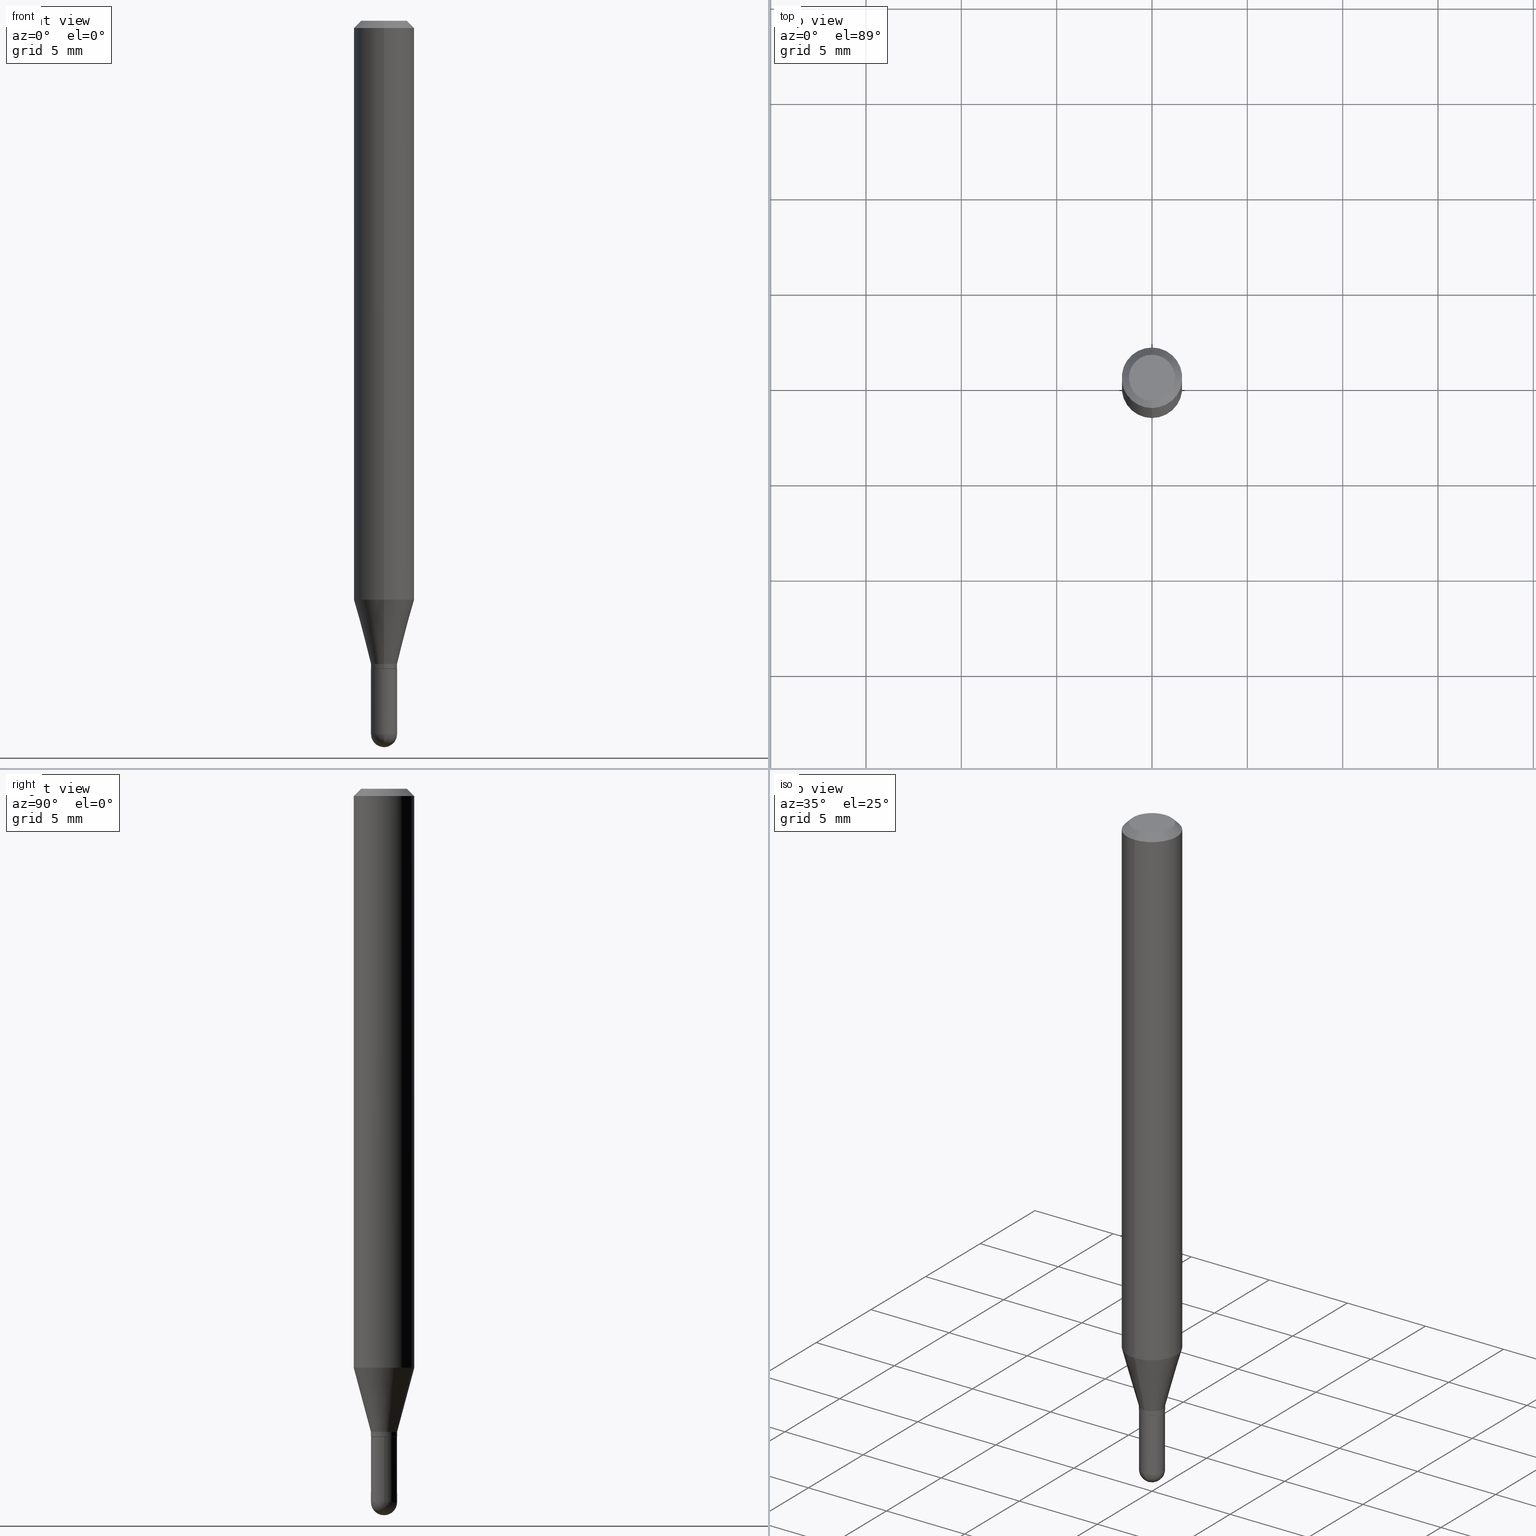
[diagram: canonical four-view strip — front | top / right | iso, engineering-drawing reading convention]
A machine part, canonical four-view strip (front | top / right | iso — engineering-drawing reading convention). The complete STEP part file that produces these views, byte-faithful:
ISO-10303-21;
HEADER;
FILE_DESCRIPTION (( 'STEP AP203' ),
    '1' );
FILE_NAME ('02619.STEP',
    '2024-03-07T20:49:20',
    ( '' ),
    ( '' ),
    'SwSTEP 2.0',
    'SolidWorks 2023',
    '' );
FILE_SCHEMA (( 'CONFIG_CONTROL_DESIGN' ));
ENDSEC;

DATA;
#1 = LINE ( 'NONE', #83, #41 ) ;
#2 = DIRECTION ( 'NONE',  ( -2.445468806185136597E-29, 3.491481338843145583E-15, 1.000000000000000000 ) ) ;
#3 = ORIENTED_EDGE ( 'NONE', *, *, #417, .F. ) ;
#4 = FACE_OUTER_BOUND ( 'NONE', #104, .T. ) ;
#5 = CARTESIAN_POINT ( 'NONE',  ( -1.885399922975286470E-16, -0.02699999999999992337, 9.426962307685878484E-17 ) ) ;
#6 = ADVANCED_FACE ( 'NONE', ( #66 ), #386, .T. ) ;
#7 = ADVANCED_FACE ( 'NONE', ( #107 ), #208, .T. ) ;
#8 = CIRCLE ( 'NONE', #170, 0.02700000000000014888 ) ;
#9 = LOCAL_TIME ( 15, 49, 20.00000000000000000, #274 ) ;
#10 = ORIENTED_EDGE ( 'NONE', *, *, #256, .F. ) ;
#11 = AXIS2_PLACEMENT_3D ( 'NONE', #388, #61, #228 ) ;
#12 = LOCAL_TIME ( 15, 49, 20.00000000000000000, #227 ) ;
#13 = ORIENTED_EDGE ( 'NONE', *, *, #330, .T. ) ;
#14 = ORIENTED_EDGE ( 'NONE', *, *, #224, .F. ) ;
#15 = ORIENTED_EDGE ( 'NONE', *, *, #380, .F. ) ;
#16 = ADVANCED_FACE ( 'NONE', ( #100 ), #20, .F. ) ;
#17 = CARTESIAN_POINT ( 'NONE',  ( 3.668217682317756627E-31, -5.237201282047839965E-17, -0.01500000000000032904 ) ) ;
#18 = CONICAL_SURFACE ( 'NONE', #446, 0.02699999999999992337, 0.2617993877991510732 ) ;
#19 = DIRECTION ( 'NONE',  ( -2.445478454878450853E-29, 3.491467521365150190E-15, 1.000000000000000000 ) ) ;
#20 = PLANE ( 'NONE',  #99 ) ;
#21 = CALENDAR_DATE ( 2024, 7, 3 ) ;
#22 = DIRECTION ( 'NONE',  ( -6.982962677686266711E-15, -1.000000000000000000, 3.491467521365150584E-15 ) ) ;
#23 = ADVANCED_FACE ( 'NONE', ( #497 ), #411, .T. ) ;
#24 = APPROVAL_ROLE ( '' ) ;
#25 = CARTESIAN_POINT ( 'NONE',  ( 0.000000000000000000, 0.000000000000000000, 0.000000000000000000 ) ) ;
#26 = ORIENTED_EDGE ( 'NONE', *, *, #464, .F. ) ;
#27 = AXIS2_PLACEMENT_3D ( 'NONE', #352, #106, #65 ) ;
#28 = DATE_TIME_ROLE ( 'creation_date' ) ;
#29 = CIRCLE ( 'NONE', #70, 0.02699999999999992337 ) ;
#30 = VECTOR ( 'NONE', #440, 39.37007874015748143 ) ;
#31 = FACE_OUTER_BOUND ( 'NONE', #161, .T. ) ;
#32 = DIRECTION ( 'NONE',  ( -6.982962677686265922E-15, -1.000000000000000000, 0.000000000000000000 ) ) ;
#33 = DIRECTION ( 'NONE',  ( -6.982962677686265922E-15, -1.000000000000000000, 3.491467521365149795E-15 ) ) ;
#34 = DIRECTION ( 'NONE',  ( 1.000000000000000000, -7.105427357601001070E-15, 4.926315508542082329E-29 ) ) ;
#35 = DATE_TIME_ROLE ( 'classification_date' ) ;
#36 = EDGE_CURVE ( 'NONE', #370, #455, #45, .T. ) ;
#37 = DIRECTION ( 'NONE',  ( -2.445478454878450853E-29, 3.491467521365150190E-15, 1.000000000000000000 ) ) ;
#38 = ORIENTED_EDGE ( 'NONE', *, *, #78, .T. ) ;
#39 = AXIS2_PLACEMENT_3D ( 'NONE', #25, #19, #234 ) ;
#40 = PLANE ( 'NONE',  #127 ) ;
#41 = VECTOR ( 'NONE', #480, 39.37007874015748143 ) ;
#42 = DIRECTION ( 'NONE',  ( 1.000000000000000000, -6.982962677686265922E-15, 4.883557194083112901E-29 ) ) ;
#43 = DIRECTION ( 'NONE',  ( -1.807323732225335661E-15, -0.2588190451025189631, 0.9659258262890687563 ) ) ;
#44 =( LENGTH_UNIT ( ) NAMED_UNIT ( * ) SI_UNIT ( $, .METRE. ) );
#45 = CIRCLE ( 'NONE', #101, 0.02700000000000014888 ) ;
#46 = APPLICATION_CONTEXT ( 'configuration controlled 3d designs of mechanical parts and assemblies' ) ;
#47 = PRODUCT_DEFINITION_FORMATION_WITH_SPECIFIED_SOURCE ( 'ANY', '', #308, .NOT_KNOWN. ) ;
#48 = ORIENTED_EDGE ( 'NONE', *, *, #206, .F. ) ;
#49 = DIRECTION ( 'NONE',  ( -6.982962677686265922E-15, -1.000000000000000000, 3.483106191921935554E-15 ) ) ;
#50 = VERTEX_POINT ( 'NONE', #63 ) ;
#51 = ORIENTED_EDGE ( 'NONE', *, *, #69, .T. ) ;
#52 =( NAMED_UNIT ( * ) SI_UNIT ( $, .STERADIAN. ) SOLID_ANGLE_UNIT ( ) );
#53 = EDGE_LOOP ( 'NONE', ( #512, #167, #204, #339 ) ) ;
#54 = PERSON ( 'UNSPECIFIED', 'UNSPECIFIED', 'UNSPECIFIED', ('UNSPECIFIED'), ('UNSPECIFIED'), ('UNSPECIFIED') ) ;
#55 = ADVANCED_BREP_SHAPE_REPRESENTATION ( '02619', ( #461, #482, #86 ), #241 ) ;
#56 = LINE ( 'NONE', #172, #303 ) ;
#57 = DIRECTION ( 'NONE',  ( -6.982962677686265922E-15, -1.000000000000000000, 0.000000000000000000 ) ) ;
#58 = CONICAL_SURFACE ( 'NONE', #355, 0.06250000000000000000, 0.7853981633974483900 ) ;
#59 = AXIS2_PLACEMENT_3D ( 'NONE', #431, #379, #117 ) ;
#60 = PERSON_AND_ORGANIZATION ( #54, #201 ) ;
#61 = DIRECTION ( 'NONE',  ( -2.445468806185136597E-29, 3.491481338843145583E-15, 1.000000000000000000 ) ) ;
#62 = EDGE_CURVE ( 'NONE', #87, #444, #29, .T. ) ;
#63 = CARTESIAN_POINT ( 'NONE',  ( -0.02699999999999999969, -4.715430483088814160E-15, -1.338000000000000078 ) ) ;
#64 = CALENDAR_DATE ( 2024, 7, 3 ) ;
#65 = DIRECTION ( 'NONE',  ( 1.000000000000000000, -6.982962677686267499E-15, 4.876176775795935232E-29 ) ) ;
#66 = FACE_OUTER_BOUND ( 'NONE', #414, .T. ) ;
#67 = DIRECTION ( 'NONE',  ( 1.839019923739605837E-15, 0.2588190451025257355, 0.9659258262890669799 ) ) ;
#68 = CARTESIAN_POINT ( 'NONE',  ( 3.316907271900976096E-16, 0.04749999999999999362, -3.299185092860269096E-16 ) ) ;
#69 = EDGE_CURVE ( 'NONE', #369, #186, #249, .T. ) ;
#70 = AXIS2_PLACEMENT_3D ( 'NONE', #273, #349, #505 ) ;
#71 = CYLINDRICAL_SURFACE ( 'NONE', #373, 0.06250000000000000000 ) ;
#72 = DIRECTION ( 'NONE',  ( -2.445468806185136597E-29, 3.491481338843145583E-15, 1.000000000000000000 ) ) ;
#73 = CARTESIAN_POINT ( 'NONE',  ( 8.024778957055871587E-45, -1.145716701727707172E-30, -3.281476040423644782E-16 ) ) ;
#74 = DIRECTION ( 'NONE',  ( -6.982962677686265922E-15, -1.000000000000000000, 0.000000000000000000 ) ) ;
#75 = DIRECTION ( 'NONE',  ( -6.982962677686265922E-15, -1.000000000000000000, 0.000000000000000000 ) ) ;
#76 = AXIS2_PLACEMENT_3D ( 'NONE', #140, #42, #74 ) ;
#77 = CARTESIAN_POINT ( 'NONE',  ( 0.02700000000000000316, -5.095817014041570866E-15, -1.473000000000000309 ) ) ;
#78 = EDGE_CURVE ( 'NONE', #186, #410, #56, .T. ) ;
#79 = CIRCLE ( 'NONE', #217, 0.06250000000000000000 ) ;
#80 = DIRECTION ( 'NONE',  ( 7.105427357601001070E-15, 1.000000000000000000, 0.000000000000000000 ) ) ;
#81 = DIRECTION ( 'NONE',  ( -6.982962677686265922E-15, -1.000000000000000000, 4.370956789862821150E-15 ) ) ;
#82 = CARTESIAN_POINT ( 'NONE',  ( -0.02700000000000000316, -4.715430483088814160E-15, -1.473000000000000309 ) ) ;
#83 = CARTESIAN_POINT ( 'NONE',  ( 4.364351673553919652E-16, 0.06249999999999995143, -0.01500000000000054588 ) ) ;
#84 = LINE ( 'NONE', #279, #171 ) ;
#85 = CIRCLE ( 'NONE', #230, 0.02699999999999992337 ) ;
#86 = AXIS2_PLACEMENT_3D ( 'NONE', #447, #94, #169 ) ;
#87 = VERTEX_POINT ( 'NONE', #96 ) ;
#88 = EDGE_CURVE ( 'NONE', #375, #410, #85, .T. ) ;
#89 = ORIENTED_EDGE ( 'NONE', *, *, #88, .T. ) ;
#90 = VERTEX_POINT ( 'NONE', #221 ) ;
#91 = CIRCLE ( 'NONE', #378, 0.04749999999999999362 ) ;
#92 = ADVANCED_FACE ( 'NONE', ( #383 ), #341, .T. ) ;
#93 = EDGE_LOOP ( 'NONE', ( #331, #89, #162, #131 ) ) ;
#94 = DIRECTION ( 'NONE',  ( 0.000000000000000000, 0.000000000000000000, 1.000000000000000000 ) ) ;
#95 = ORIENTED_EDGE ( 'NONE', *, *, #62, .T. ) ;
#96 = CARTESIAN_POINT ( 'NONE',  ( -1.885399922974961558E-16, -0.02700000000000455855, -1.328000000000000513 ) ) ;
#97 = APPROVAL_DATE_TIME ( #430, #295 ) ;
#98 = FACE_OUTER_BOUND ( 'NONE', #207, .T. ) ;
#99 = AXIS2_PLACEMENT_3D ( 'NONE', #68, #231, #312 ) ;
#100 = FACE_OUTER_BOUND ( 'NONE', #214, .T. ) ;
#101 = AXIS2_PLACEMENT_3D ( 'NONE', #147, #264, #32 ) ;
#102 = CALENDAR_DATE ( 2024, 7, 3 ) ;
#103 = CARTESIAN_POINT ( 'NONE',  ( 3.602175551510707068E-29, -5.142952012115954617E-15, -1.473000000000000309 ) ) ;
#104 = EDGE_LOOP ( 'NONE', ( #305, #401 ) ) ;
#105 = PERSON_AND_ORGANIZATION ( #54, #201 ) ;
#106 = DIRECTION ( 'NONE',  ( -2.445468806185136597E-29, 3.491481338843145583E-15, 1.000000000000000000 ) ) ;
#107 = FACE_OUTER_BOUND ( 'NONE', #328, .T. ) ;
#108 = DIMENSIONAL_EXPONENTS ( 1.000000000000000000, 0.000000000000000000, 0.000000000000000000, 0.000000000000000000, 0.000000000000000000, 0.000000000000000000, 0.000000000000000000 ) ;
#109 = APPROVAL_ROLE ( '' ) ;
#110 = CARTESIAN_POINT ( 'NONE',  ( -0.02700000000000000316, 1.918465386552270727E-16, -1.328112474368824641E-30 ) ) ;
#111 = PRODUCT_RELATED_PRODUCT_CATEGORY ( 'detail', '', ( #308 ) ) ;
#112 = DIRECTION ( 'NONE',  ( -4.937700262164674260E-15, -0.7071067811865632269, 0.7071067811865319186 ) ) ;
#113 = VECTOR ( 'NONE', #280, 39.37007874015748143 ) ;
#114 = COORDINATED_UNIVERSAL_TIME_OFFSET ( 5, 0, .BEHIND. ) ;
#115 = FACE_OUTER_BOUND ( 'NONE', #53, .T. ) ;
#116 = CARTESIAN_POINT ( 'NONE',  ( 3.272050172627366946E-29, -4.671583543586570530E-15, -1.338000000000000078 ) ) ;
#117 = DIRECTION ( 'NONE',  ( 1.000000000000000000, -6.982962677686259611E-15, 0.000000000000000000 ) ) ;
#118 = DIRECTION ( 'NONE',  ( -6.982962677686265922E-15, -1.000000000000000000, 0.000000000000000000 ) ) ;
#119 = ADVANCED_FACE ( 'NONE', ( #178 ), #18, .T. ) ;
#120 = CARTESIAN_POINT ( 'NONE',  ( 1.882938249764592324E-16, 0.02649999999999532938, -1.338000000000000078 ) ) ;
#121 = DIRECTION ( 'NONE',  ( -2.445468806185136597E-29, 3.491481338843145583E-15, 1.000000000000000000 ) ) ;
#122 = LINE ( 'NONE', #284, #419 ) ;
#123 = EDGE_CURVE ( 'NONE', #444, #87, #181, .T. ) ;
#124 = CARTESIAN_POINT ( 'NONE',  ( -4.364351673553912750E-16, -0.06250000000000005551, -0.01500000000000011047 ) ) ;
#125 = EDGE_CURVE ( 'NONE', #486, #90, #164, .T. ) ;
#126 = AXIS2_PLACEMENT_3D ( 'NONE', #17, #389, #218 ) ;
#127 = AXIS2_PLACEMENT_3D ( 'NONE', #197, #360, #156 ) ;
#128 = ORIENTED_EDGE ( 'NONE', *, *, #88, .F. ) ;
#129 = PRODUCT_DEFINITION ( 'UNKNOWN', '', #47, #301 ) ;
#130 = ORIENTED_EDGE ( 'NONE', *, *, #36, .T. ) ;
#131 = ORIENTED_EDGE ( 'NONE', *, *, #123, .F. ) ;
#132 = AXIS2_PLACEMENT_3D ( 'NONE', #103, #342, #494 ) ;
#133 = ORIENTED_EDGE ( 'NONE', *, *, #191, .F. ) ;
#134 = ORIENTED_EDGE ( 'NONE', *, *, #365, .T. ) ;
#135 = PERSON_AND_ORGANIZATION ( #54, #201 ) ;
#136 = DIRECTION ( 'NONE',  ( -6.982962677686266711E-15, -1.000000000000000000, 3.491467521365150584E-15 ) ) ;
#137 = CC_DESIGN_PERSON_AND_ORGANIZATION_ASSIGNMENT ( #105, #387, ( #47 ) ) ;
#138 = ORIENTED_EDGE ( 'NONE', *, *, #473, .T. ) ;
#139 = CARTESIAN_POINT ( 'NONE',  ( 3.272050172627366946E-29, -4.671583543586570530E-15, -1.338000000000000078 ) ) ;
#140 = CARTESIAN_POINT ( 'NONE',  ( 3.599866602529921766E-29, -5.146258558473651564E-15, -1.473000000000000087 ) ) ;
#141 = CIRCLE ( 'NONE', #477, 0.02699999999999992337 ) ;
#142 = DIRECTION ( 'NONE',  ( -2.445478454878450853E-29, 3.491467521365150190E-15, 1.000000000000000000 ) ) ;
#143 = EDGE_LOOP ( 'NONE', ( #452, #13, #296, #406, #268 ) ) ;
#144 = APPROVAL_DATE_TIME ( #391, #160 ) ;
#145 = APPROVAL ( #346, 'UNSPECIFIED' ) ;
#146 = CARTESIAN_POINT ( 'NONE',  ( 0.02699999999999999969, -4.860142023669657629E-15, -1.338000000000000078 ) ) ;
#147 = CARTESIAN_POINT ( 'NONE',  ( 3.599866602529921766E-29, -5.146258558473651564E-15, -1.473000000000000087 ) ) ;
#148 = MECHANICAL_CONTEXT ( 'NONE', #213, 'mechanical' ) ;
#149 = CARTESIAN_POINT ( 'NONE',  ( 0.000000000000000000, 0.000000000000000000, 0.000000000000000000 ) ) ;
#150 = DIRECTION ( 'NONE',  ( -2.445478454878450853E-29, 3.491467521365150190E-15, 1.000000000000000000 ) ) ;
#151 = APPROVAL_PERSON_ORGANIZATION ( #135, #160, #24 ) ;
#152 = EDGE_LOOP ( 'NONE', ( #211, #194, #190, #15 ) ) ;
#153 = DIRECTION ( 'NONE',  ( -2.445478454878450853E-29, 3.491467521365150190E-15, 1.000000000000000000 ) ) ;
#154 = EDGE_CURVE ( 'NONE', #87, #486, #318, .T. ) ;
#155 = FACE_OUTER_BOUND ( 'NONE', #412, .T. ) ;
#156 = DIRECTION ( 'NONE',  ( -1.000000000000000000, 6.982962677686265922E-15, -4.876176775795935793E-29 ) ) ;
#157 = FACE_OUTER_BOUND ( 'NONE', #205, .T. ) ;
#158 = VECTOR ( 'NONE', #199, 39.37007874015748143 ) ;
#159 = CARTESIAN_POINT ( 'NONE',  ( -3.773273898774340269E-16, -0.04749999999999999362, -1.623028967775198570E-16 ) ) ;
#160 = APPROVAL ( #506, 'UNSPECIFIED' ) ;
#161 = EDGE_LOOP ( 'NONE', ( #48, #130, #289, #434 ) ) ;
#162 = ORIENTED_EDGE ( 'NONE', *, *, #224, .T. ) ;
#163 = ORIENTED_EDGE ( 'NONE', *, *, #483, .T. ) ;
#164 = CIRCLE ( 'NONE', #471, 0.06250000000000000000 ) ;
#165 = ADVANCED_FACE ( 'NONE', ( #239 ), #196, .T. ) ;
#166 = ORIENTED_EDGE ( 'NONE', *, *, #154, .F. ) ;
#167 = ORIENTED_EDGE ( 'NONE', *, *, #123, .T. ) ;
#168 = ORIENTED_EDGE ( 'NONE', *, *, #510, .T. ) ;
#169 = DIRECTION ( 'NONE',  ( 1.000000000000000000, 0.000000000000000000, 0.000000000000000000 ) ) ;
#170 = AXIS2_PLACEMENT_3D ( 'NONE', #361, #34, #80 ) ;
#171 = VECTOR ( 'NONE', #329, 39.37007874015748143 ) ;
#172 = CARTESIAN_POINT ( 'NONE',  ( -1.850485109586532966E-16, -0.02650000000000466913, -1.338000000000000078 ) ) ;
#173 = EDGE_CURVE ( 'NONE', #423, #50, #332, .T. ) ;
#174 = CARTESIAN_POINT ( 'NONE',  ( 1.918465386552589476E-16, 0.02699999999999528819, -1.328000000000000513 ) ) ;
#175 = DIRECTION ( 'NONE',  ( -2.445478454878450853E-29, 3.491467521365150190E-15, 1.000000000000000000 ) ) ;
#176 = COORDINATED_UNIVERSAL_TIME_OFFSET ( 5, 0, .BEHIND. ) ;
#177 = DIRECTION ( 'NONE',  ( 6.982962677686265922E-15, 1.000000000000000000, -3.483106191921935554E-15 ) ) ;
#178 = FACE_OUTER_BOUND ( 'NONE', #445, .T. ) ;
#179 = DIRECTION ( 'NONE',  ( 1.000000000000000000, -6.982962677686259611E-15, 0.000000000000000000 ) ) ;
#180 = ORIENTED_EDGE ( 'NONE', *, *, #125, .F. ) ;
#181 = CIRCLE ( 'NONE', #399, 0.02699999999999992337 ) ;
#182 = ADVANCED_FACE ( 'NONE', ( #155 ), #432, .F. ) ;
#183 = ADVANCED_FACE ( 'NONE', ( #157 ), #395, .T. ) ;
#184 = CALENDAR_DATE ( 2024, 7, 3 ) ;
#185 = CARTESIAN_POINT ( 'NONE',  ( 0.02700000000000000316, -1.885399922975292387E-16, 1.316567729464902685E-30 ) ) ;
#186 = VERTEX_POINT ( 'NONE', #356 ) ;
#187 = DIRECTION ( 'NONE',  ( -2.445478454878450853E-29, 3.491467521365150190E-15, 1.000000000000000000 ) ) ;
#188 = DIRECTION ( 'NONE',  ( -6.982962677686265922E-15, -1.000000000000000000, 4.370956789862821150E-15 ) ) ;
#189 = APPROVAL_STATUS ( 'not_yet_approved' ) ;
#190 = ORIENTED_EDGE ( 'NONE', *, *, #266, .F. ) ;
#191 = EDGE_CURVE ( 'NONE', #369, #375, #323, .T. ) ;
#192 = DIRECTION ( 'NONE',  ( -6.982962677686265922E-15, -1.000000000000000000, 0.000000000000000000 ) ) ;
#193 = AXIS2_PLACEMENT_3D ( 'NONE', #429, #72, #511 ) ;
#194 = ORIENTED_EDGE ( 'NONE', *, *, #206, .T. ) ;
#195 = LOCAL_TIME ( 15, 49, 20.00000000000000000, #176 ) ;
#196 = CYLINDRICAL_SURFACE ( 'NONE', #262, 0.06250000000000000000 ) ;
#197 = CARTESIAN_POINT ( 'NONE',  ( 1.885399922975619024E-16, 0.02699999999999532982, -1.338000000000000078 ) ) ;
#198 = CARTESIAN_POINT ( 'NONE',  ( 3.272037262675712888E-29, -4.671602031372128143E-15, -1.338000000000000078 ) ) ;
#199 = DIRECTION ( 'NONE',  ( -2.445478454878450853E-29, 3.491467521365150190E-15, 1.000000000000000000 ) ) ;
#200 = AXIS2_PLACEMENT_3D ( 'NONE', #385, #496, #179 ) ;
#201 = ORGANIZATION ( 'UNSPECIFIED', 'UNSPECIFIED', '' ) ;
#202 = DIRECTION ( 'NONE',  ( -2.445478454878450853E-29, 3.491467521365150190E-15, 1.000000000000000000 ) ) ;
#203 = ORIENTED_EDGE ( 'NONE', *, *, #245, .T. ) ;
#204 = ORIENTED_EDGE ( 'NONE', *, *, #154, .T. ) ;
#205 = EDGE_LOOP ( 'NONE', ( #225, #215, #374, #134, #354 ) ) ;
#206 = EDGE_CURVE ( 'NONE', #370, #291, #8, .T. ) ;
#207 = EDGE_LOOP ( 'NONE', ( #26, #396, #448, #168 ) ) ;
#208 = CONICAL_SURFACE ( 'NONE', #281, 0.02649999999999999925, 0.7853981633974739252 ) ;
#209 = CIRCLE ( 'NONE', #377, 0.02649999999999999925 ) ;
#210 = APPROVAL_PERSON_ORGANIZATION ( #453, #295, #109 ) ;
#211 = ORIENTED_EDGE ( 'NONE', *, *, #36, .F. ) ;
#212 = LENGTH_MEASURE_WITH_UNIT ( LENGTH_MEASURE( 0.02539999999999999897 ), #44 );
#213 = APPLICATION_CONTEXT ( 'configuration controlled 3d designs of mechanical parts and assemblies' ) ;
#214 = EDGE_LOOP ( 'NONE', ( #408, #450 ) ) ;
#215 = ORIENTED_EDGE ( 'NONE', *, *, #443, .T. ) ;
#216 = VECTOR ( 'NONE', #267, 39.37007874015748143 ) ;
#217 = AXIS2_PLACEMENT_3D ( 'NONE', #407, #242, #81 ) ;
#218 = DIRECTION ( 'NONE',  ( 6.982962677686265922E-15, 1.000000000000000000, -3.483106191921935554E-15 ) ) ;
#219 = PERSON_AND_ORGANIZATION ( #54, #201 ) ;
#220 = CARTESIAN_POINT ( 'NONE',  ( 3.668217682317756627E-31, -5.237201282047839965E-17, -0.01500000000000032904 ) ) ;
#221 = CARTESIAN_POINT ( 'NONE',  ( 4.440892098500916068E-16, 0.06249999999999580891, -1.195512196331306232 ) ) ;
#222 = APPROVAL_ROLE ( '' ) ;
#223 = CARTESIAN_POINT ( 'NONE',  ( 1.918465386552585285E-16, 0.02699999999999516329, -1.337500000000000133 ) ) ;
#224 = EDGE_CURVE ( 'NONE', #410, #87, #439, .T. ) ;
#225 = ORIENTED_EDGE ( 'NONE', *, *, #330, .F. ) ;
#226 = PRODUCT_DEFINITION_SHAPE ( 'NONE', 'NONE',  #129 ) ;
#227 = COORDINATED_UNIVERSAL_TIME_OFFSET ( 5, 0, .BEHIND. ) ;
#228 = DIRECTION ( 'NONE',  ( 1.000000000000000000, -6.982962677686259611E-15, 0.000000000000000000 ) ) ;
#229 = CLOSED_SHELL ( 'NONE', ( #397, #92, #449, #415, #183 ) ) ;
#230 = AXIS2_PLACEMENT_3D ( 'NONE', #258, #416, #57 ) ;
#231 = DIRECTION ( 'NONE',  ( 2.445478454878450573E-29, -3.491467521365150190E-15, -1.000000000000000000 ) ) ;
#232 = AXIS2_PLACEMENT_3D ( 'NONE', #357, #327, #364 ) ;
#233 = PERSON_AND_ORGANIZATION ( #54, #201 ) ;
#234 = DIRECTION ( 'NONE',  ( -6.982962677686265922E-15, -1.000000000000000000, 3.491467521365150190E-15 ) ) ;
#235 = CARTESIAN_POINT ( 'NONE',  ( 3.247595388078583312E-29, -4.636668868372920613E-15, -1.328000000000000513 ) ) ;
#236 = PERSON_AND_ORGANIZATION_ROLE ( 'creator' ) ;
#237 = DIRECTION ( 'NONE',  ( -2.445478454878450573E-29, 3.491467521365150190E-15, 1.000000000000000000 ) ) ;
#238 = CC_DESIGN_DATE_AND_TIME_ASSIGNMENT ( #457, #28, ( #129 ) ) ;
#239 = FACE_OUTER_BOUND ( 'NONE', #462, .T. ) ;
#240 = VECTOR ( 'NONE', #277, 39.37007874015748143 ) ;
#241 =( GEOMETRIC_REPRESENTATION_CONTEXT ( 3 ) GLOBAL_UNCERTAINTY_ASSIGNED_CONTEXT ( ( #259 ) ) GLOBAL_UNIT_ASSIGNED_CONTEXT ( ( #333, #487, #52 ) ) REPRESENTATION_CONTEXT ( 'NONE', 'WORKASPACE' ) );
#242 = DIRECTION ( 'NONE',  ( -2.445478454878450853E-29, 3.491467521365150190E-15, 1.000000000000000000 ) ) ;
#243 = CARTESIAN_POINT ( 'NONE',  ( 0.000000000000000000, 0.000000000000000000, 0.000000000000000000 ) ) ;
#244 = LINE ( 'NONE', #250, #158 ) ;
#245 = EDGE_CURVE ( 'NONE', #410, #375, #141, .T. ) ;
#246 = CARTESIAN_POINT ( 'NONE',  ( -4.364351673553626295E-16, -0.06250000000000420497, -1.195512196331305566 ) ) ;
#247 = ORIENTED_EDGE ( 'NONE', *, *, #78, .F. ) ;
#248 = VERTEX_POINT ( 'NONE', #478 ) ;
#249 = CIRCLE ( 'NONE', #499, 0.02649999999999999925 ) ;
#250 = CARTESIAN_POINT ( 'NONE',  ( 1.918465386552264810E-16, 0.02699999999999992337, -9.426962307685878484E-17 ) ) ;
#251 = ORIENTED_EDGE ( 'NONE', *, *, #125, .T. ) ;
#252 = VERTEX_POINT ( 'NONE', #82 ) ;
#253 = EDGE_CURVE ( 'NONE', #50, #423, #435, .T. ) ;
#254 = ORIENTED_EDGE ( 'NONE', *, *, #473, .F. ) ;
#255 = VECTOR ( 'NONE', #460, 39.37007874015748143 ) ;
#256 = EDGE_CURVE ( 'NONE', #186, #369, #209, .T. ) ;
#257 = ADVANCED_FACE ( 'NONE', ( #436 ), #454, .T. ) ;
#258 = CARTESIAN_POINT ( 'NONE',  ( 3.270827433399928633E-29, -4.669837809825889493E-15, -1.337500000000000133 ) ) ;
#259 = UNCERTAINTY_MEASURE_WITH_UNIT (LENGTH_MEASURE( 1.000000000000000082E-05 ), #333, 'distance_accuracy_value', 'NONE');
#260 = DATE_AND_TIME ( #184, #437 ) ;
#261 = LINE ( 'NONE', #174, #282 ) ;
#262 = AXIS2_PLACEMENT_3D ( 'NONE', #243, #320, #475 ) ;
#263 = CIRCLE ( 'NONE', #59, 0.02700000000000000316 ) ;
#264 = DIRECTION ( 'NONE',  ( -1.000000000000000000, 6.982962677686265922E-15, -4.883557194083112340E-29 ) ) ;
#265 = DATE_AND_TIME ( #102, #195 ) ;
#266 = EDGE_CURVE ( 'NONE', #492, #291, #405, .T. ) ;
#267 = DIRECTION ( 'NONE',  ( -2.445468806185136877E-29, 3.491481338843145188E-15, 1.000000000000000000 ) ) ;
#268 = ORIENTED_EDGE ( 'NONE', *, *, #266, .T. ) ;
#269 = PERSON_AND_ORGANIZATION_ROLE ( 'design_supplier' ) ;
#270 = DIRECTION ( 'NONE',  ( 1.000000000000000000, -6.982962677686265922E-15, 4.883557194083112901E-29 ) ) ;
#271 = DIRECTION ( 'NONE',  ( -2.445478454878450853E-29, 3.491467521365150190E-15, 1.000000000000000000 ) ) ;
#272 = SPHERICAL_SURFACE ( 'NONE', #418, 0.02700000000000014888 ) ;
#273 = CARTESIAN_POINT ( 'NONE',  ( 3.247595388078583312E-29, -4.636668868372920613E-15, -1.328000000000000513 ) ) ;
#274 = COORDINATED_UNIVERSAL_TIME_OFFSET ( 5, 0, .BEHIND. ) ;
#275 = CARTESIAN_POINT ( 'NONE',  ( -1.885399922974965502E-16, -0.02700000000000468345, -1.337500000000000133 ) ) ;
#276 = DIRECTION ( 'NONE',  ( -2.445478454878450853E-29, 3.491467521365150190E-15, 1.000000000000000000 ) ) ;
#277 = DIRECTION ( 'NONE',  ( 5.024295867788190974E-15, 0.7071067811865681119, 0.7071067811865270336 ) ) ;
#278 = EDGE_LOOP ( 'NONE', ( #251, #292, #335, #254 ) ) ;
#279 = CARTESIAN_POINT ( 'NONE',  ( 4.440892098500625669E-16, 0.06250000000000000000, -2.182167200853218622E-16 ) ) ;
#280 = DIRECTION ( 'NONE',  ( -2.445478454878450853E-29, 3.491467521365150190E-15, 1.000000000000000000 ) ) ;
#281 = AXIS2_PLACEMENT_3D ( 'NONE', #421, #271, #426 ) ;
#282 = VECTOR ( 'NONE', #67, 39.37007874015748143 ) ;
#283 = CC_DESIGN_SECURITY_CLASSIFICATION ( #304, ( #47 ) ) ;
#284 = CARTESIAN_POINT ( 'NONE',  ( -4.287811248607203282E-16, -0.06250000000000005551, -0.01500000000000011047 ) ) ;
#285 = CC_DESIGN_PERSON_AND_ORGANIZATION_ASSIGNMENT ( #60, #236, ( #129 ) ) ;
#286 = ADVANCED_FACE ( 'NONE', ( #115 ), #441, .T. ) ;
#287 = DIRECTION ( 'NONE',  ( 1.000000000000000000, -6.982962677686261189E-15, 0.000000000000000000 ) ) ;
#288 = DIRECTION ( 'NONE',  ( -4.851104656540964275E-15, -0.7071067811865500152, -0.7071067811865450192 ) ) ;
#289 = ORIENTED_EDGE ( 'NONE', *, *, #443, .F. ) ;
#290 = CONICAL_SURFACE ( 'NONE', #489, 0.02649999999999999925, 0.7853981633974739252 ) ;
#291 = VERTEX_POINT ( 'NONE', #424 ) ;
#292 = ORIENTED_EDGE ( 'NONE', *, *, #488, .T. ) ;
#293 = AXIS2_PLACEMENT_3D ( 'NONE', #422, #187, #307 ) ;
#294 = CC_DESIGN_APPROVAL ( #295, ( #304 ) ) ;
#295 = APPROVAL ( #189, 'UNSPECIFIED' ) ;
#296 = ORIENTED_EDGE ( 'NONE', *, *, #173, .F. ) ;
#297 = DIRECTION ( 'NONE',  ( -2.445478454878450853E-29, 3.491467521365150190E-15, 1.000000000000000000 ) ) ;
#298 = SECURITY_CLASSIFICATION_LEVEL ( 'unclassified' ) ;
#299 = CARTESIAN_POINT ( 'NONE',  ( 0.000000000000000000, 0.000000000000000000, 0.000000000000000000 ) ) ;
#300 = EDGE_CURVE ( 'NONE', #291, #252, #362, .T. ) ;
#301 = DESIGN_CONTEXT ( 'detailed design', #46, 'design' ) ;
#302 = DIRECTION ( 'NONE',  ( -6.982962677686265922E-15, -1.000000000000000000, 0.000000000000000000 ) ) ;
#303 = VECTOR ( 'NONE', #112, 39.37007874015748143 ) ;
#304 = SECURITY_CLASSIFICATION ( '', '', #298 ) ;
#305 = ORIENTED_EDGE ( 'NONE', *, *, #173, .T. ) ;
#306 = PERSON_AND_ORGANIZATION ( #54, #201 ) ;
#307 = DIRECTION ( 'NONE',  ( -6.982962677686265922E-15, -1.000000000000000000, 0.000000000000000000 ) ) ;
#308 = PRODUCT ( '02619', '02619', '', ( #148 ) ) ;
#309 = ORIENTED_EDGE ( 'NONE', *, *, #69, .F. ) ;
#310 = APPROVAL_DATE_TIME ( #260, #145 ) ;
#311 = CYLINDRICAL_SURFACE ( 'NONE', #27, 0.02700000000000000316 ) ;
#312 = DIRECTION ( 'NONE',  ( 6.982962677686265922E-15, 1.000000000000000000, -3.491467521365150190E-15 ) ) ;
#313 = PERSON_AND_ORGANIZATION ( #54, #201 ) ;
#314 = DIRECTION ( 'NONE',  ( -2.445478454878450853E-29, 3.491467521365150190E-15, 1.000000000000000000 ) ) ;
#315 = AXIS2_PLACEMENT_3D ( 'NONE', #198, #121, #287 ) ;
#316 = DIRECTION ( 'NONE',  ( -2.445478454878450853E-29, 3.491467521365150190E-15, 1.000000000000000000 ) ) ;
#317 = CC_DESIGN_APPROVAL ( #160, ( #129 ) ) ;
#318 = LINE ( 'NONE', #400, #458 ) ;
#319 = CARTESIAN_POINT ( 'NONE',  ( -4.364351673553916201E-16, -0.06250000000000000000, 2.182167200853218622E-16 ) ) ;
#320 = DIRECTION ( 'NONE',  ( -2.445478454878450853E-29, 3.491467521365150190E-15, 1.000000000000000000 ) ) ;
#321 = ORIENTED_EDGE ( 'NONE', *, *, #508, .T. ) ;
#322 = CARTESIAN_POINT ( 'NONE',  ( -1.885399922974936906E-16, -0.02700000000000522121, -1.473000000000000309 ) ) ;
#323 = LINE ( 'NONE', #120, #240 ) ;
#324 = CLOSED_SHELL ( 'NONE', ( #6, #7, #23, #427, #119, #286, #165, #409, #16, #182, #351, #257 ) ) ;
#325 = AXIS2_PLACEMENT_3D ( 'NONE', #338, #507, #136 ) ;
#326 = CIRCLE ( 'NONE', #11, 0.02700000000000000316 ) ;
#327 = DIRECTION ( 'NONE',  ( -2.445478454878450853E-29, 3.491467521365150190E-15, 1.000000000000000000 ) ) ;
#328 = EDGE_LOOP ( 'NONE', ( #345, #476, #484, #247 ) ) ;
#329 = DIRECTION ( 'NONE',  ( -2.445478454878450853E-29, 3.491467521365150190E-15, 1.000000000000000000 ) ) ;
#330 = EDGE_CURVE ( 'NONE', #252, #50, #470, .T. ) ;
#331 = ORIENTED_EDGE ( 'NONE', *, *, #508, .F. ) ;
#332 = CIRCLE ( 'NONE', #315, 0.02699999999999999969 ) ;
#333 =( CONVERSION_BASED_UNIT ( 'INCH', #212 ) LENGTH_UNIT ( ) NAMED_UNIT ( #108 ) );
#334 = ORIENTED_EDGE ( 'NONE', *, *, #464, .T. ) ;
#335 = ORIENTED_EDGE ( 'NONE', *, *, #483, .F. ) ;
#336 = AXIS2_PLACEMENT_3D ( 'NONE', #116, #237, #472 ) ;
#337 = DIRECTION ( 'NONE',  ( -6.982962677686265922E-15, -1.000000000000000000, 0.000000000000000000 ) ) ;
#338 = CARTESIAN_POINT ( 'NONE',  ( 8.024778957055871587E-45, -1.145716701727707172E-30, -3.281476040423644782E-16 ) ) ;
#339 = ORIENTED_EDGE ( 'NONE', *, *, #498, .F. ) ;
#340 = LINE ( 'NONE', #185, #255 ) ;
#341 = SPHERICAL_SURFACE ( 'NONE', #76, 0.02700000000000014888 ) ;
#342 = DIRECTION ( 'NONE',  ( -2.445468806185136597E-29, 3.491481338843145583E-15, 1.000000000000000000 ) ) ;
#343 = CIRCLE ( 'NONE', #325, 0.04749999999999999362 ) ;
#344 = CIRCLE ( 'NONE', #232, 0.06250000000000000000 ) ;
#345 = ORIENTED_EDGE ( 'NONE', *, *, #256, .T. ) ;
#346 = APPROVAL_STATUS ( 'not_yet_approved' ) ;
#347 = EDGE_CURVE ( 'NONE', #444, #90, #261, .T. ) ;
#348 = DIRECTION ( 'NONE',  ( -6.982962677686265922E-15, -1.000000000000000000, 0.000000000000000000 ) ) ;
#349 = DIRECTION ( 'NONE',  ( -2.445478454878450853E-29, 3.491467521365150190E-15, 1.000000000000000000 ) ) ;
#350 = APPLICATION_PROTOCOL_DEFINITION ( 'international standard', 'config_control_design', 1994, #46 ) ;
#351 = ADVANCED_FACE ( 'NONE', ( #501 ), #290, .T. ) ;
#352 = CARTESIAN_POINT ( 'NONE',  ( 0.000000000000000000, 0.000000000000000000, 0.000000000000000000 ) ) ;
#353 = CARTESIAN_POINT ( 'NONE',  ( 2.923599318672625307E-29, -4.174092004886671043E-15, -1.195512196331305788 ) ) ;
#354 = ORIENTED_EDGE ( 'NONE', *, *, #253, .F. ) ;
#355 = AXIS2_PLACEMENT_3D ( 'NONE', #220, #467, #177 ) ;
#356 = CARTESIAN_POINT ( 'NONE',  ( -1.850485109586532966E-16, -0.02650000000000466913, -1.338000000000000078 ) ) ;
#357 = CARTESIAN_POINT ( 'NONE',  ( 3.668217682317756627E-31, -5.237201282047839965E-17, -0.01500000000000032904 ) ) ;
#358 = DIRECTION ( 'NONE',  ( -6.982962677686265922E-15, -1.000000000000000000, 0.000000000000000000 ) ) ;
#359 = ORIENTED_EDGE ( 'NONE', *, *, #485, .F. ) ;
#360 = DIRECTION ( 'NONE',  ( 2.438088387897960049E-29, -3.491481338843145188E-15, -1.000000000000000000 ) ) ;
#361 = CARTESIAN_POINT ( 'NONE',  ( 3.599866602529921766E-29, -5.146258558473651564E-15, -1.473000000000000087 ) ) ;
#362 = CIRCLE ( 'NONE', #132, 0.02700000000000000316 ) ;
#363 = APPROVAL_PERSON_ORGANIZATION ( #306, #145, #222 ) ;
#364 = DIRECTION ( 'NONE',  ( -6.982962677686265922E-15, -1.000000000000000000, 3.483106191921935554E-15 ) ) ;
#365 = EDGE_CURVE ( 'NONE', #492, #423, #340, .T. ) ;
#366 = EDGE_LOOP ( 'NONE', ( #133, #51, #38, #128 ) ) ;
#367 = CARTESIAN_POINT ( 'NONE',  ( 3.179678742526754374E-16, 0.02699999999999528819, -1.328000000000000513 ) ) ;
#368 = ORIENTED_EDGE ( 'NONE', *, *, #510, .F. ) ;
#369 = VERTEX_POINT ( 'NONE', #420 ) ;
#370 = VERTEX_POINT ( 'NONE', #463 ) ;
#371 = EDGE_LOOP ( 'NONE', ( #3, #334, #163, #359 ) ) ;
#372 = AXIS2_PLACEMENT_3D ( 'NONE', #474, #2, #403 ) ;
#373 = AXIS2_PLACEMENT_3D ( 'NONE', #149, #314, #33 ) ;
#374 = ORIENTED_EDGE ( 'NONE', *, *, #380, .T. ) ;
#375 = VERTEX_POINT ( 'NONE', #223 ) ;
#376 = ORIENTED_EDGE ( 'NONE', *, *, #347, .T. ) ;
#377 = AXIS2_PLACEMENT_3D ( 'NONE', #433, #153, #75 ) ;
#378 = AXIS2_PLACEMENT_3D ( 'NONE', #73, #504, #22 ) ;
#379 = DIRECTION ( 'NONE',  ( -2.445468806185136597E-29, 3.491481338843145583E-15, 1.000000000000000000 ) ) ;
#380 = EDGE_CURVE ( 'NONE', #455, #492, #326, .T. ) ;
#381 = DIRECTION ( 'NONE',  ( -6.982962677686265922E-15, -1.000000000000000000, 3.491467521365150190E-15 ) ) ;
#382 = CARTESIAN_POINT ( 'NONE',  ( 3.599866602529921766E-29, -5.146258558473651564E-15, -1.473000000000000087 ) ) ;
#383 = FACE_OUTER_BOUND ( 'NONE', #152, .T. ) ;
#384 = SHAPE_DEFINITION_REPRESENTATION ( #226, #55 ) ;
#385 = CARTESIAN_POINT ( 'NONE',  ( 3.602175551510707068E-29, -5.142952012115954617E-15, -1.473000000000000309 ) ) ;
#386 = CYLINDRICAL_SURFACE ( 'NONE', #456, 0.02699999999999992337 ) ;
#387 = PERSON_AND_ORGANIZATION_ROLE ( 'creator' ) ;
#388 = CARTESIAN_POINT ( 'NONE',  ( 3.602175551510707068E-29, -5.142952012115954617E-15, -1.473000000000000309 ) ) ;
#389 = DIRECTION ( 'NONE',  ( 2.445478454878450853E-29, -3.491467521365150190E-15, -1.000000000000000000 ) ) ;
#390 = CC_DESIGN_DATE_AND_TIME_ASSIGNMENT ( #265, #35, ( #304 ) ) ;
#391 = DATE_AND_TIME ( #394, #12 ) ;
#392 = FACE_OUTER_BOUND ( 'NONE', #143, .T. ) ;
#393 = CARTESIAN_POINT ( 'NONE',  ( 3.247595388078583312E-29, -4.636668868372920613E-15, -1.328000000000000513 ) ) ;
#394 = CALENDAR_DATE ( 2024, 7, 3 ) ;
#395 = CYLINDRICAL_SURFACE ( 'NONE', #372, 0.02700000000000000316 ) ;
#396 = ORIENTED_EDGE ( 'NONE', *, *, #398, .F. ) ;
#397 = ADVANCED_FACE ( 'NONE', ( #392 ), #311, .T. ) ;
#398 = EDGE_CURVE ( 'NONE', #248, #465, #343, .T. ) ;
#399 = AXIS2_PLACEMENT_3D ( 'NONE', #393, #276, #358 ) ;
#400 = CARTESIAN_POINT ( 'NONE',  ( -1.885399922974961558E-16, -0.02700000000000455855, -1.328000000000000513 ) ) ;
#401 = ORIENTED_EDGE ( 'NONE', *, *, #253, .T. ) ;
#402 = LINE ( 'NONE', #319, #30 ) ;
#403 = DIRECTION ( 'NONE',  ( 1.000000000000000000, -6.982962677686267499E-15, 4.876176775795935232E-29 ) ) ;
#404 = CARTESIAN_POINT ( 'NONE',  ( 3.668217682317756627E-31, -5.237201282047839965E-17, -0.01500000000000032904 ) ) ;
#405 = CIRCLE ( 'NONE', #200, 0.02700000000000000316 ) ;
#406 = ORIENTED_EDGE ( 'NONE', *, *, #365, .F. ) ;
#407 = CARTESIAN_POINT ( 'NONE',  ( 2.923599318672625307E-29, -4.174092004886671043E-15, -1.195512196331305788 ) ) ;
#408 = ORIENTED_EDGE ( 'NONE', *, *, #398, .T. ) ;
#409 = ADVANCED_FACE ( 'NONE', ( #98 ), #58, .T. ) ;
#410 = VERTEX_POINT ( 'NONE', #275 ) ;
#411 = CONICAL_SURFACE ( 'NONE', #126, 0.06250000000000000000, 0.7853981633974483900 ) ;
#412 = EDGE_LOOP ( 'NONE', ( #10, #309 ) ) ;
#413 = APPLICATION_PROTOCOL_DEFINITION ( 'international standard', 'config_control_design', 1994, #213 ) ;
#414 = EDGE_LOOP ( 'NONE', ( #203, #321, #502, #14 ) ) ;
#415 = ADVANCED_FACE ( 'NONE', ( #31 ), #272, .T. ) ;
#416 = DIRECTION ( 'NONE',  ( -2.445478454878450853E-29, 3.491467521365150190E-15, 1.000000000000000000 ) ) ;
#417 = EDGE_CURVE ( 'NONE', #465, #248, #91, .T. ) ;
#418 = AXIS2_PLACEMENT_3D ( 'NONE', #382, #270, #348 ) ;
#419 = VECTOR ( 'NONE', #288, 39.37007874015748143 ) ;
#420 = CARTESIAN_POINT ( 'NONE',  ( 1.900701818158592132E-16, 0.02649999999999532938, -1.338000000000000078 ) ) ;
#421 = CARTESIAN_POINT ( 'NONE',  ( 3.272050172627366946E-29, -4.671583543586570530E-15, -1.338000000000000078 ) ) ;
#422 = CARTESIAN_POINT ( 'NONE',  ( 3.247595388078583312E-29, -4.636668868372920613E-15, -1.328000000000000513 ) ) ;
#423 = VERTEX_POINT ( 'NONE', #146 ) ;
#424 = CARTESIAN_POINT ( 'NONE',  ( 1.918465386552636068E-16, 0.02699999999999493430, -1.473000000000000309 ) ) ;
#425 = CC_DESIGN_PERSON_AND_ORGANIZATION_ASSIGNMENT ( #219, #269, ( #47 ) ) ;
#426 = DIRECTION ( 'NONE',  ( -6.982962677686265922E-15, -1.000000000000000000, 0.000000000000000000 ) ) ;
#427 = ADVANCED_FACE ( 'NONE', ( #428 ), #71, .T. ) ;
#428 = FACE_OUTER_BOUND ( 'NONE', #278, .T. ) ;
#429 = CARTESIAN_POINT ( 'NONE',  ( 3.272037262675712888E-29, -4.671602031372128143E-15, -1.338000000000000078 ) ) ;
#430 = DATE_AND_TIME ( #64, #9 ) ;
#431 = CARTESIAN_POINT ( 'NONE',  ( 3.602175551510707068E-29, -5.142952012115954617E-15, -1.473000000000000309 ) ) ;
#432 = PLANE ( 'NONE',  #336 ) ;
#433 = CARTESIAN_POINT ( 'NONE',  ( 3.272050172627366946E-29, -4.671583543586570530E-15, -1.338000000000000078 ) ) ;
#434 = ORIENTED_EDGE ( 'NONE', *, *, #300, .F. ) ;
#435 = CIRCLE ( 'NONE', #193, 0.02699999999999999969 ) ;
#436 = FACE_OUTER_BOUND ( 'NONE', #93, .T. ) ;
#437 = LOCAL_TIME ( 15, 49, 20.00000000000000000, #114 ) ;
#438 = CARTESIAN_POINT ( 'NONE',  ( 4.440892098500920012E-16, 0.06249999999999995143, -0.01500000000000054588 ) ) ;
#439 = LINE ( 'NONE', #5, #113 ) ;
#440 = DIRECTION ( 'NONE',  ( -2.445478454878450853E-29, 3.491467521365150190E-15, 1.000000000000000000 ) ) ;
#441 = CONICAL_SURFACE ( 'NONE', #293, 0.02699999999999992337, 0.2617993877991510732 ) ;
#442 = CC_DESIGN_APPROVAL ( #145, ( #47 ) ) ;
#443 = EDGE_CURVE ( 'NONE', #252, #455, #263, .T. ) ;
#444 = VERTEX_POINT ( 'NONE', #367 ) ;
#445 = EDGE_LOOP ( 'NONE', ( #95, #376, #180, #166 ) ) ;
#446 = AXIS2_PLACEMENT_3D ( 'NONE', #235, #150, #118 ) ;
#447 = CARTESIAN_POINT ( 'NONE',  ( 0.000000000000000000, 0.000000000000000000, 0.000000000000000000 ) ) ;
#448 = ORIENTED_EDGE ( 'NONE', *, *, #485, .T. ) ;
#449 = ADVANCED_FACE ( 'NONE', ( #4 ), #40, .F. ) ;
#450 = ORIENTED_EDGE ( 'NONE', *, *, #417, .T. ) ;
#451 = CC_DESIGN_PERSON_AND_ORGANIZATION_ASSIGNMENT ( #233, #469, ( #308 ) ) ;
#452 = ORIENTED_EDGE ( 'NONE', *, *, #300, .T. ) ;
#453 = PERSON_AND_ORGANIZATION ( #54, #201 ) ;
#454 = CYLINDRICAL_SURFACE ( 'NONE', #39, 0.02699999999999992337 ) ;
#455 = VERTEX_POINT ( 'NONE', #322 ) ;
#456 = AXIS2_PLACEMENT_3D ( 'NONE', #299, #175, #381 ) ;
#457 = DATE_AND_TIME ( #21, #491 ) ;
#458 = VECTOR ( 'NONE', #43, 39.37007874015748854 ) ;
#459 = CIRCLE ( 'NONE', #500, 0.06250000000000000000 ) ;
#460 = DIRECTION ( 'NONE',  ( -2.445468806185136877E-29, 3.491481338843145188E-15, 1.000000000000000000 ) ) ;
#461 = MANIFOLD_SOLID_BREP ( 'Body-Move/Copy2[1]', #229 ) ;
#462 = EDGE_LOOP ( 'NONE', ( #493, #490, #138, #368 ) ) ;
#463 = CARTESIAN_POINT ( 'NONE',  ( 3.664739785806528624E-29, -5.242181827801266358E-15, -1.500000000000000444 ) ) ;
#464 = EDGE_CURVE ( 'NONE', #465, #495, #122, .T. ) ;
#465 = VERTEX_POINT ( 'NONE', #159 ) ;
#466 = PERSON_AND_ORGANIZATION_ROLE ( 'classification_officer' ) ;
#467 = DIRECTION ( 'NONE',  ( 2.445478454878450853E-29, -3.491467521365150190E-15, -1.000000000000000000 ) ) ;
#468 = CARTESIAN_POINT ( 'NONE',  ( 3.272050172627366946E-29, -4.671583543586570530E-15, -1.338000000000000078 ) ) ;
#469 = PERSON_AND_ORGANIZATION_ROLE ( 'design_owner' ) ;
#470 = LINE ( 'NONE', #110, #216 ) ;
#471 = AXIS2_PLACEMENT_3D ( 'NONE', #353, #316, #188 ) ;
#472 = DIRECTION ( 'NONE',  ( -6.982962677686265922E-15, -1.000000000000000000, 3.491467521365150190E-15 ) ) ;
#473 = EDGE_CURVE ( 'NONE', #486, #495, #402, .T. ) ;
#474 = CARTESIAN_POINT ( 'NONE',  ( 0.000000000000000000, 0.000000000000000000, 0.000000000000000000 ) ) ;
#475 = DIRECTION ( 'NONE',  ( -6.982962677686265922E-15, -1.000000000000000000, 3.491467521365149795E-15 ) ) ;
#476 = ORIENTED_EDGE ( 'NONE', *, *, #191, .T. ) ;
#477 = AXIS2_PLACEMENT_3D ( 'NONE', #509, #37, #192 ) ;
#478 = CARTESIAN_POINT ( 'NONE',  ( 3.840629472727447874E-16, 0.04749999999999999362, -4.939923113072091241E-16 ) ) ;
#479 = CC_DESIGN_PERSON_AND_ORGANIZATION_ASSIGNMENT ( #313, #466, ( #304 ) ) ;
#480 = DIRECTION ( 'NONE',  ( 4.937700262164548042E-15, 0.7071067811865451302, -0.7071067811865499042 ) ) ;
#481 = VERTEX_POINT ( 'NONE', #438 ) ;
#482 = MANIFOLD_SOLID_BREP ( 'Body-Move/Copy2[2]', #324 ) ;
#483 = EDGE_CURVE ( 'NONE', #495, #481, #344, .T. ) ;
#484 = ORIENTED_EDGE ( 'NONE', *, *, #245, .F. ) ;
#485 = EDGE_CURVE ( 'NONE', #248, #481, #1, .T. ) ;
#486 = VERTEX_POINT ( 'NONE', #246 ) ;
#487 =( NAMED_UNIT ( * ) PLANE_ANGLE_UNIT ( ) SI_UNIT ( $, .RADIAN. ) );
#488 = EDGE_CURVE ( 'NONE', #90, #481, #84, .T. ) ;
#489 = AXIS2_PLACEMENT_3D ( 'NONE', #139, #142, #302 ) ;
#490 = ORIENTED_EDGE ( 'NONE', *, *, #498, .T. ) ;
#491 = LOCAL_TIME ( 15, 49, 20.00000000000000000, #503 ) ;
#492 = VERTEX_POINT ( 'NONE', #77 ) ;
#493 = ORIENTED_EDGE ( 'NONE', *, *, #488, .F. ) ;
#494 = DIRECTION ( 'NONE',  ( 1.000000000000000000, -6.982962677686259611E-15, 0.000000000000000000 ) ) ;
#495 = VERTEX_POINT ( 'NONE', #124 ) ;
#496 = DIRECTION ( 'NONE',  ( -2.445468806185136597E-29, 3.491481338843145583E-15, 1.000000000000000000 ) ) ;
#497 = FACE_OUTER_BOUND ( 'NONE', #371, .T. ) ;
#498 = EDGE_CURVE ( 'NONE', #90, #486, #79, .T. ) ;
#499 = AXIS2_PLACEMENT_3D ( 'NONE', #468, #297, #337 ) ;
#500 = AXIS2_PLACEMENT_3D ( 'NONE', #404, #202, #49 ) ;
#501 = FACE_OUTER_BOUND ( 'NONE', #366, .T. ) ;
#502 = ORIENTED_EDGE ( 'NONE', *, *, #62, .F. ) ;
#503 = COORDINATED_UNIVERSAL_TIME_OFFSET ( 5, 0, .BEHIND. ) ;
#504 = DIRECTION ( 'NONE',  ( -2.445478454878450853E-29, 3.491467521365150190E-15, 1.000000000000000000 ) ) ;
#505 = DIRECTION ( 'NONE',  ( -6.982962677686265922E-15, -1.000000000000000000, 0.000000000000000000 ) ) ;
#506 = APPROVAL_STATUS ( 'not_yet_approved' ) ;
#507 = DIRECTION ( 'NONE',  ( -2.445478454878450853E-29, 3.491467521365150190E-15, 1.000000000000000000 ) ) ;
#508 = EDGE_CURVE ( 'NONE', #375, #444, #244, .T. ) ;
#509 = CARTESIAN_POINT ( 'NONE',  ( 3.270827433399928633E-29, -4.669837809825889493E-15, -1.337500000000000133 ) ) ;
#510 = EDGE_CURVE ( 'NONE', #481, #495, #459, .T. ) ;
#511 = DIRECTION ( 'NONE',  ( 1.000000000000000000, -6.982962677686261189E-15, 0.000000000000000000 ) ) ;
#512 = ORIENTED_EDGE ( 'NONE', *, *, #347, .F. ) ;
ENDSEC;
END-ISO-10303-21;
